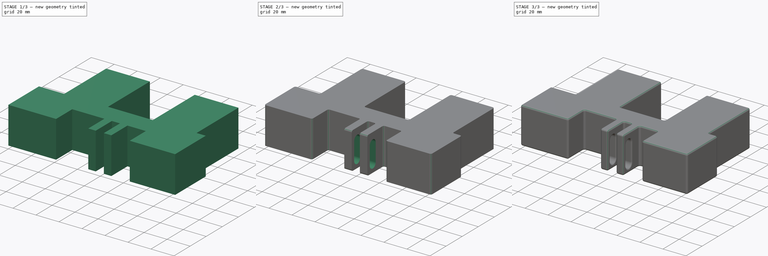
[diagram: build sequence overview — one tinted view per stage of 3, left to right]
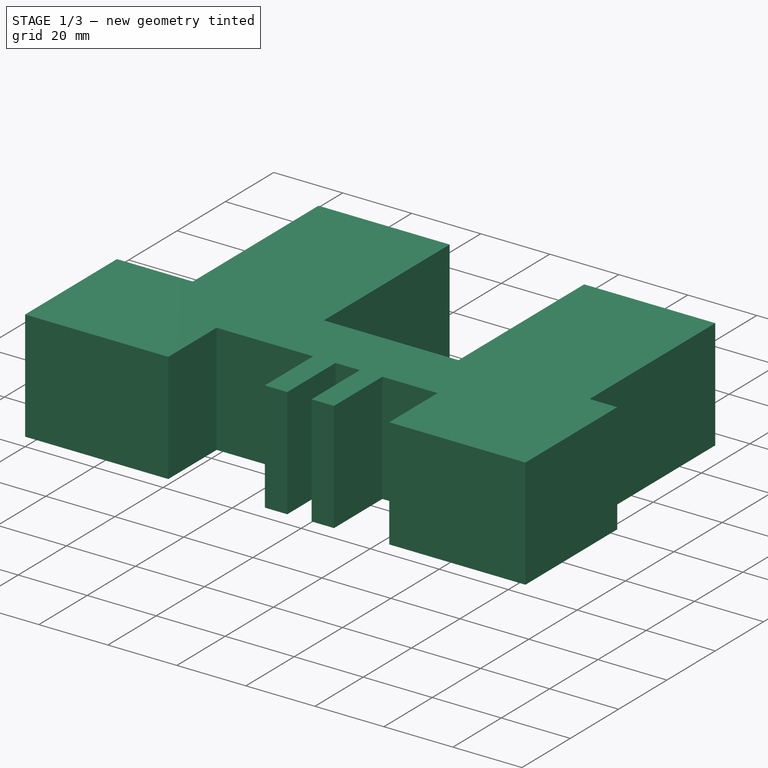
[diagram: stage 1 of 3 — iso view after this stage's code; geometry added in this stage tinted green]
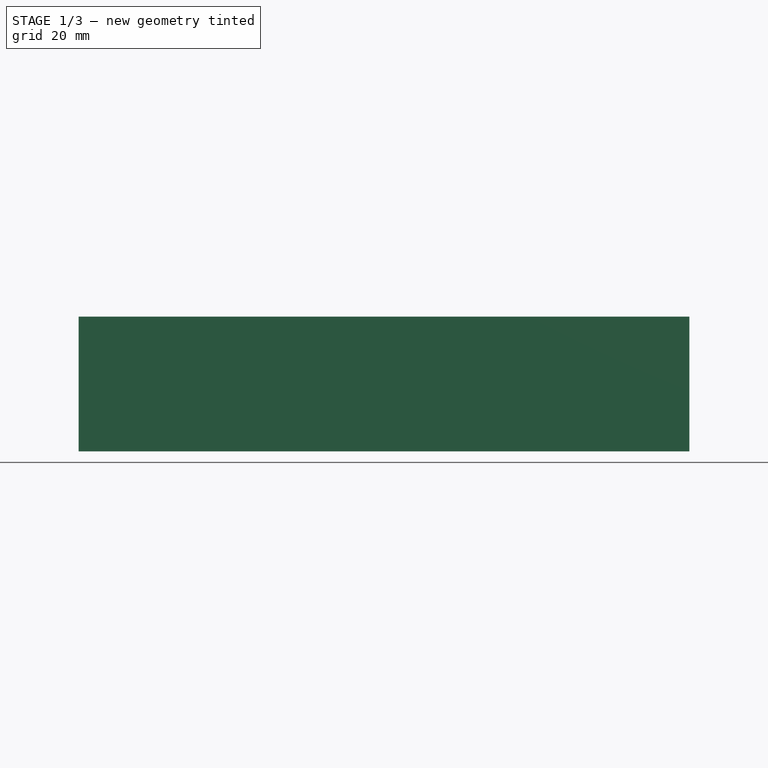
[diagram: stage 1 of 3 — front view after this stage's code; geometry added in this stage tinted green]
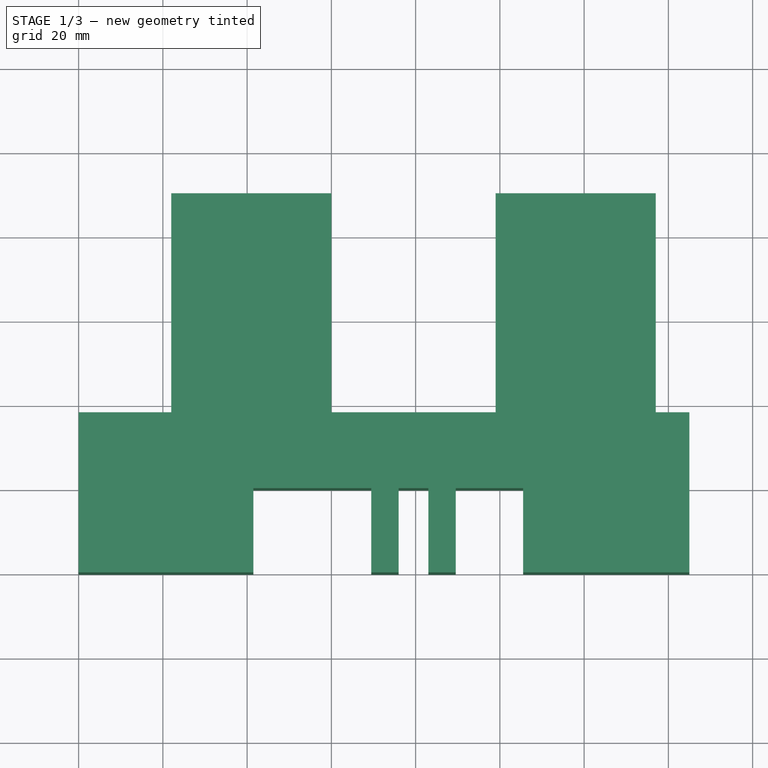
[diagram: stage 1 of 3 — top view after this stage's code; geometry added in this stage tinted green]
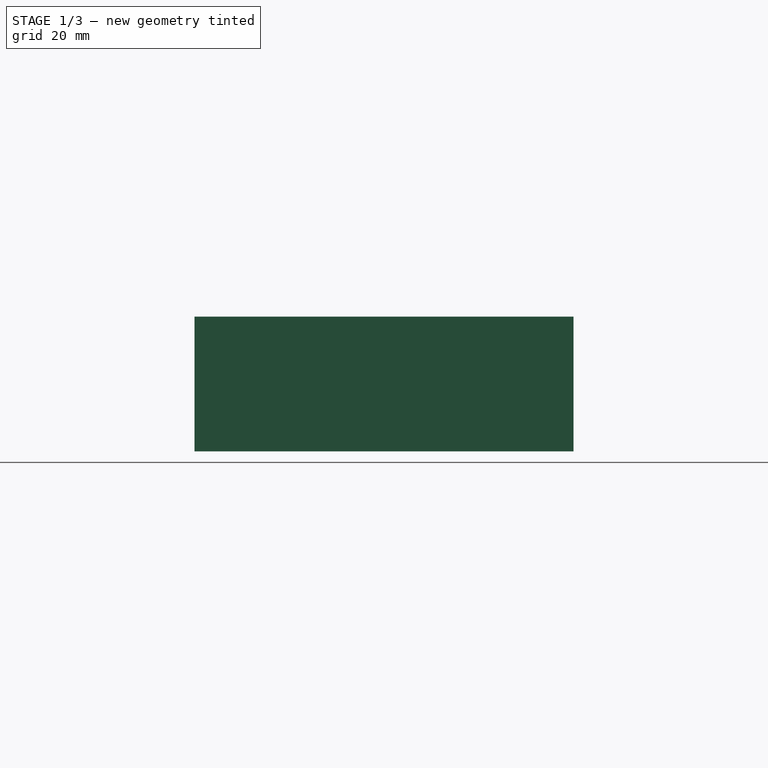
[diagram: stage 1 of 3 — right view after this stage's code; geometry added in this stage tinted green]
FCSTD DOCUMENT  (FreeCAD 1.0RUnknown)
Label: water-valve-support
License: All rights reserved
LicenseURL: https://en.wikipedia.org/wiki/All_rights_reserved
objects: PartDesign::Fillet×4, Sketcher::SketchObject×3, PartDesign::Pocket×2, PartDesign::Pad×1, PartDesign::Body×1
note: 28 computed .brp shape members not serialized (recipe doc carries the construction recipe); baked Part::Feature solids carry a one-line shape summary decoded from their .brp

FEATURE [Sketcher::SketchObject] Sketch
  ArcFitTolerance = 1e-06
  AttachmentSupport = -> [XY_Plane]
  FullyConstrained = true
  MakeInternals = false
  MapMode = 5
  sketch-geometry (12):
    g0: LineSegment StartX=0 StartY=0 StartZ=0 EndX=0 EndY=38 EndZ=0
    g1: LineSegment StartX=22 StartY=38 StartZ=0 EndX=0 EndY=38 EndZ=0
    g2: LineSegment StartX=22 StartY=38 StartZ=0 EndX=22 EndY=90 EndZ=0
    g3: LineSegment StartX=22 StartY=90 StartZ=0 EndX=60 EndY=90 EndZ=0
    g4: LineSegment StartX=60 StartY=90 StartZ=0 EndX=60 EndY=38 EndZ=0
    g5: LineSegment StartX=60 StartY=38 StartZ=0 EndX=99 EndY=38 EndZ=0
    g6: LineSegment StartX=99 StartY=38 StartZ=0 EndX=99 EndY=90 EndZ=0
    g7: LineSegment StartX=99 StartY=90 StartZ=0 EndX=137 EndY=90 EndZ=0
    g8: LineSegment StartX=137 StartY=90 StartZ=0 EndX=137 EndY=38 EndZ=0
    g9: LineSegment StartX=137 StartY=38 StartZ=0 EndX=145 EndY=38 EndZ=0
    g10: LineSegment StartX=145 StartY=38 StartZ=0 EndX=145 EndY=0 EndZ=0
    g11: LineSegment StartX=145 StartY=0 StartZ=0 EndX=0 EndY=0 EndZ=0
  constraints (35):
    c: Coincident(g0,g-1)
    c: PointOnObject(g0,g-2)
    c: Coincident(g1,g0)
    c: Horizontal(g1)
    c: Coincident(g2,g1)
    c: Vertical(g2)
    c: Horizontal(g3)
    c: Vertical(g4)
    c: Horizontal(g5)
    c: Vertical(g6)
    c: Horizontal(g7)
    c: Vertical(g8)
    c: PointOnObject(g10,g-1)
    c: Vertical(g10)
    c: Coincident(g11,g0)
    c: Equal(g3,g7)
    c: Equal(g2,g6)
    c: Coincident(g3,g2)
    c: Coincident(g3,g4)
    c: Coincident(g4,g5)
    c: Coincident(g5,g6)
    c: Coincident(g7,g6)
    c: Coincident(g7,g8)
    c: Coincident(g8,g9)
    c: Coincident(g10,g9)
    c: Horizontal(g9)
    c: Coincident(g10,g11)
    c: Horizontal(g1,g4)
    c: Horizontal(g5,g8)
    c: DistanceX(g11,g11) = 145
    c: Distance(g0,g0) = 38
    c: Distance(g2,g2) = 52
    c: Distance(g3,g3) = 38
    c: DistanceX(g1,g1) = 22
    c: Distance(g9,g9) = 8
FEATURE [PartDesign::Pad] Pad
  Direction = (0,0,1)
  Length = 32
  Length2 = 10
  Profile = -> Sketch
  ReferenceAxis = -> Sketch [N_Axis]
  Refine = true
  Suppressed = false
  Type = 0
FEATURE [Sketcher::SketchObject] Sketch001
  ArcFitTolerance = 1e-06
  AttachmentSupport = -> [Pad]
  ExternalGeometry = -> [Pad]
  FullyConstrained = true
  MakeInternals = false
  MapMode = 5
  Placement = pos=(0,0,0) rot=(1,0,0;1.5708rad)
  sketch-geometry (23):
    g0: LineSegment [constr] StartX=60 StartY=32 StartZ=0 EndX=99 EndY=7.1e-15 EndZ=0
    g1: GeomPoint [constr] X=79.5 Y=16 Z=0
    g2: LineSegment [constr] StartX=69.475 StartY=32 StartZ=0 EndX=69.475 EndY=2.49e-14 EndZ=0
    g3: LineSegment [constr] StartX=69.475 StartY=2.54e-14 StartZ=0 EndX=75.975 EndY=2.54e-14 EndZ=0
    g4: LineSegment [constr] StartX=75.975 StartY=2.54e-14 StartZ=0 EndX=75.975 EndY=32 EndZ=0
    g5: LineSegment [constr] StartX=75.975 StartY=32 StartZ=0 EndX=69.475 EndY=32 EndZ=0
    g6: LineSegment [constr] StartX=83.025 StartY=32 StartZ=0 EndX=83.025 EndY=0 EndZ=0
    g7: LineSegment [constr] StartX=83.025 StartY=0 StartZ=0 EndX=89.525 EndY=0 EndZ=0
    g8: LineSegment [constr] StartX=89.525 StartY=0 StartZ=0 EndX=89.525 EndY=32 EndZ=0
    g9: LineSegment [constr] StartX=89.525 StartY=32 StartZ=0 EndX=83.025 EndY=32 EndZ=0
    g10: LineSegment StartX=75.975 StartY=32 StartZ=0 EndX=75.975 EndY=0 EndZ=0
    g11: LineSegment StartX=75.975 StartY=0 StartZ=0 EndX=83.025 EndY=0 EndZ=0
    g12: LineSegment StartX=83.025 StartY=0 StartZ=0 EndX=83.025 EndY=32 EndZ=0
    g13: LineSegment StartX=83.025 StartY=32 StartZ=0 EndX=75.975 EndY=32 EndZ=0
    g14: LineSegment StartX=41.5 StartY=32 StartZ=0 EndX=41.5 EndY=0 EndZ=0
    g15: LineSegment StartX=41.5 StartY=0 StartZ=0 EndX=69.475 EndY=0 EndZ=0
    g16: LineSegment StartX=69.475 StartY=0 StartZ=0 EndX=69.475 EndY=32 EndZ=0
    g17: LineSegment StartX=69.475 StartY=32 StartZ=0 EndX=41.5 EndY=32 EndZ=0
    g18: LineSegment StartX=89.525 StartY=32 StartZ=0 EndX=89.525 EndY=0 EndZ=0
    g19: LineSegment StartX=105.525 StartY=32 StartZ=0 EndX=89.525 EndY=32 EndZ=0
    g20: GeomPoint [constr] X=49.5 Y=32 Z=0
    g21: LineSegment StartX=89.525 StartY=0 StartZ=0 EndX=105.525 EndY=0 EndZ=0
    g22: LineSegment StartX=105.525 StartY=32 StartZ=0 EndX=105.525 EndY=0 EndZ=0
  constraints (60):
    c: Coincident(g0,g-3)
    c: Coincident(g0,g-4)
    c: Symmetric(g0,g0,g1)
    c: Coincident(g2,g3)
    c: Coincident(g4,g5)
    c: Coincident(g5,g2)
    c: Vertical(g2)
    c: Vertical(g4)
    c: Horizontal(g3)
    c: Horizontal(g5)
    c: PointOnObject(g2,g-5)
    c: Coincident(g6,g7)
    c: Coincident(g7,g8)
    c: Coincident(g8,g9)
    c: Coincident(g9,g6)
    c: Vertical(g6)
    c: Vertical(g8)
    c: Horizontal(g7)
    c: Horizontal(g9)
    c: PointOnObject(g6,g-5)
    c: PointOnObject(g7,g-6)
    c: Coincident(g4,g3)
    c: Symmetric(g6,g3,g1)
    c: Equal(g5,g9)
    c: DistanceX(g3,g6) = 7.05
    c: Coincident(g10,g11)
    c: Coincident(g11,g12)
    c: Coincident(g12,g13)
    c: Coincident(g13,g10)
    c: Vertical(g10)
    c: Vertical(g12)
    c: Horizontal(g11)
    c: Horizontal(g13)
    c: Coincident(g10,g4)
    c: Coincident(g11,g6)
    c: Distance(g5,g5) = 6.5
    c: Coincident(g14,g15)
    c: Coincident(g15,g16)
    c: Coincident(g16,g17)
    c: Coincident(g17,g14)
    c: Vertical(g14)
    c: Vertical(g16)
    c: Horizontal(g15)
    c: Horizontal(g17)
    c: PointOnObject(g15,g-6)
    c: Coincident(g19,g18)
    c: Vertical(g18)
    c: Horizontal(g19)
    c: Coincident(g18,g8)
    c: Coincident(g16,g2)
    c: DistanceX(g20,g1) = 30
    c: Distance(g20,g14) = 8
    c: PointOnObject(g20,g17)
    c: Coincident(g21,g18)
    c: PointOnObject(g21,g-6)
    c: Horizontal(g21)
    c: Coincident(g22,g19)
    c: Coincident(g22,g21)
    c: Vertical(g22)
    c: Distance(g19,g19) = 16
FEATURE [PartDesign::Pocket] Pocket
  BaseFeature = -> Pad
  Direction = (0,1,-2e-16)
  Length = 20
  Length2 = 5
  Profile = -> Sketch001
  ReferenceAxis = -> Sketch001 [N_Axis]
  Refine = true
  Suppressed = false
  Type = 0
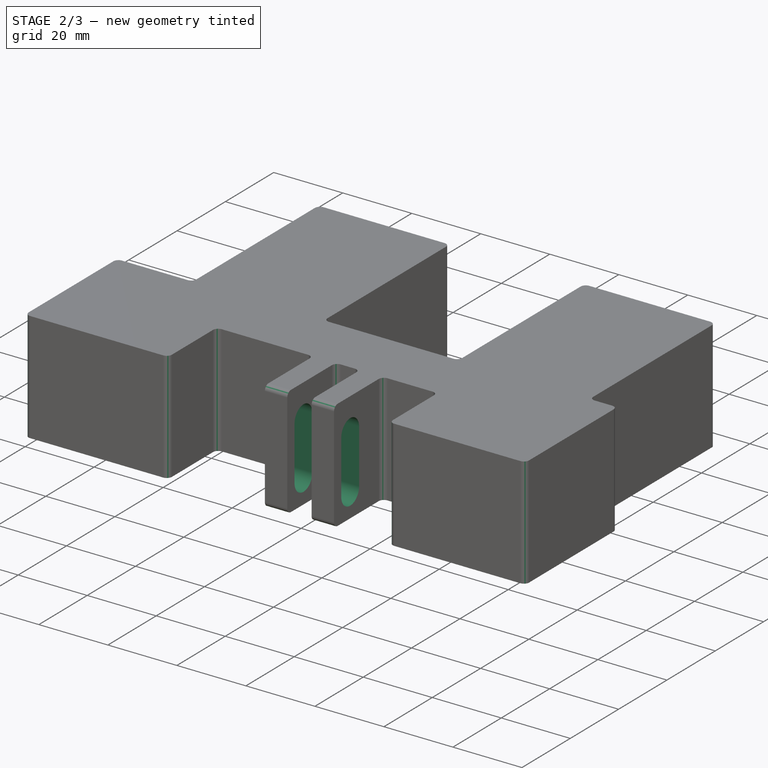
[diagram: stage 2 of 3 — iso view after this stage's code; geometry added in this stage tinted green]
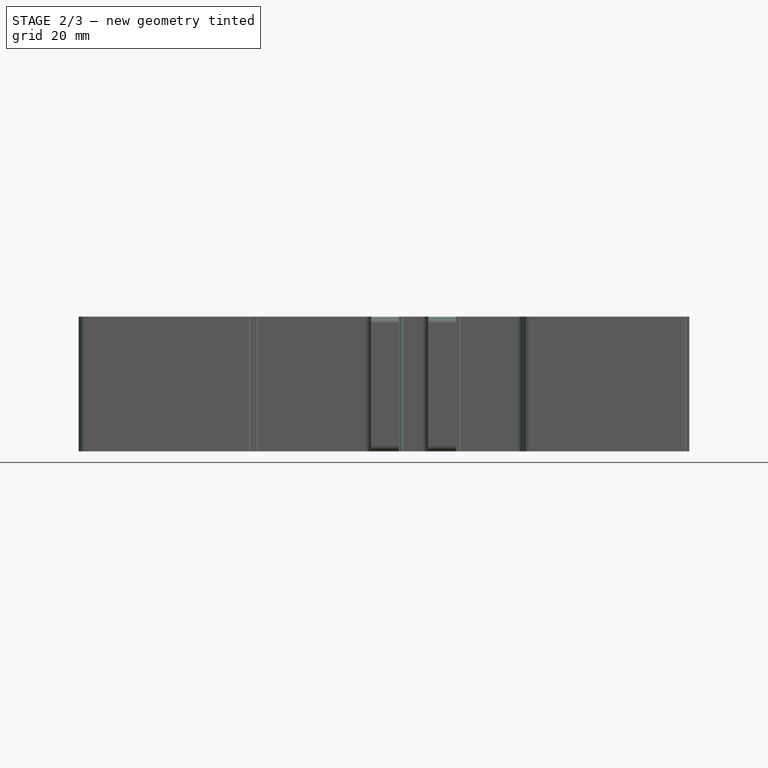
[diagram: stage 2 of 3 — front view after this stage's code; geometry added in this stage tinted green]
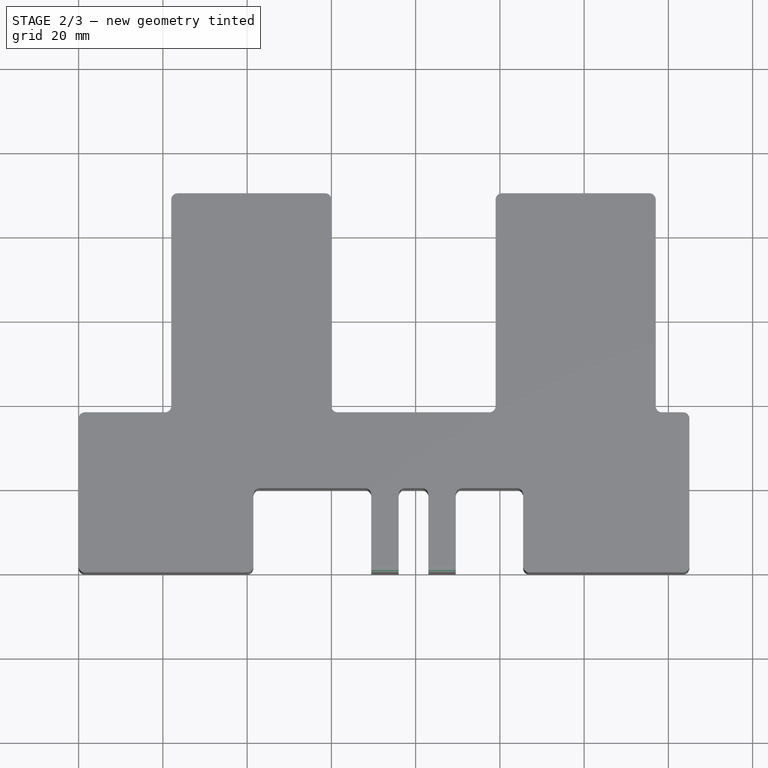
[diagram: stage 2 of 3 — top view after this stage's code; geometry added in this stage tinted green]
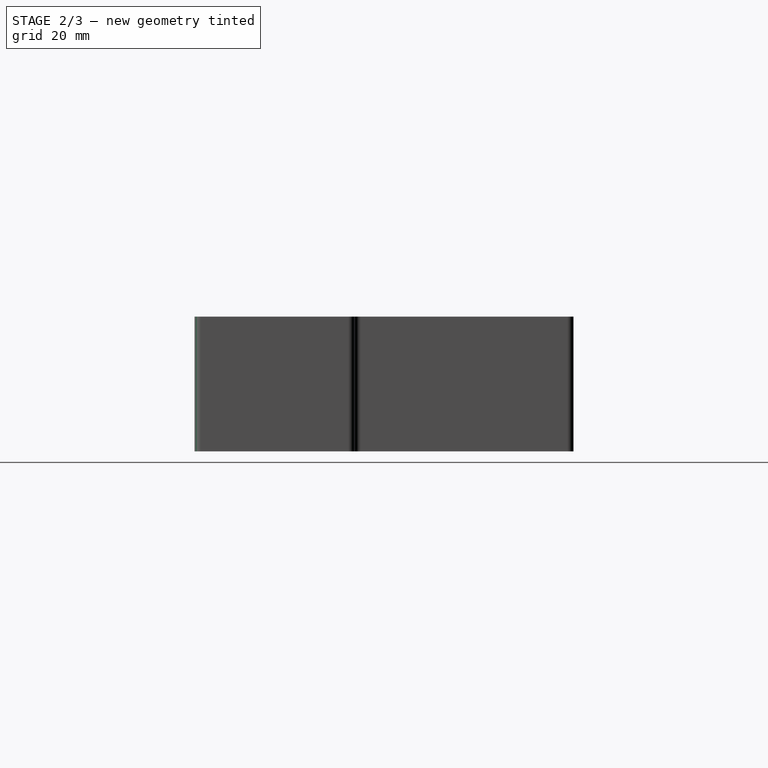
[diagram: stage 2 of 3 — right view after this stage's code; geometry added in this stage tinted green]
FEATURE [Sketcher::SketchObject] Sketch002
  ArcFitTolerance = 1e-06
  AttachmentSupport = -> [Pocket]
  ExternalGeometry = -> [Pocket]
  FullyConstrained = true
  MakeInternals = false
  MapMode = 5
  Placement = pos=(69.475,0,0) rot=(0.57735,-0.57735,-0.57735;2.0944rad)
  sketch-geometry (5):
    g0: LineSegment [constr] StartX=-6.7 StartY=32 StartZ=0 EndX=-6.7 EndY=0 EndZ=0
    g1: ArcOfCircle CenterX=-6.7 CenterY=22.55 CenterZ=0 NormalX=0 NormalY=0 NormalZ=1 AngleXU=0 Radius=3.7 StartAngle=4e-16 EndAngle=3.14159
    g2: ArcOfCircle CenterX=-6.7 CenterY=7.02 CenterZ=0 NormalX=0 NormalY=0 NormalZ=1 AngleXU=0 Radius=3.7 StartAngle=3.14159 EndAngle=6.28319
    g3: LineSegment StartX=-3 StartY=22.55 StartZ=0 EndX=-3 EndY=7.02 EndZ=0
    g4: LineSegment StartX=-10.4 StartY=22.55 StartZ=0 EndX=-10.4 EndY=7.02 EndZ=0
  constraints (14):
    c: PointOnObject(g0,g-3)
    c: PointOnObject(g0,g-5)
    c: Vertical(g0)
    c: Distance(g-4,g0) = 6.7
    c: Tangent(g1,g3) = 1.5708
    c: Tangent(g1,g4) = -1.5708
    c: Tangent(g2,g3) = 1.5708
    c: Tangent(g2,g4) = -1.5708
    c: Equal(g1,g2)
    c: Vertical(g4)
    c: Radius(g1) = 3.7
    c: PointOnObject(g1,g0)
    c: DistanceY(g2,g1) = 15.53
    c: Distance(g1,g-3) = 9.45
FEATURE [PartDesign::Pocket] Pocket001
  BaseFeature = -> Pocket
  Direction = (1,0,0)
  Length = 0
  Length2 = 5
  Profile = -> Sketch002
  ReferenceAxis = -> Sketch002 [N_Axis]
  Refine = true
  Suppressed = false
  Type = 3
  UpToFace = -> Pocket [Face19]
FEATURE [PartDesign::Fillet] Fillet
  Base = -> Pocket001 [Edge7,Edge53,Edge84,Edge77,Edge72,Edge65,Edge64,Edge63,Edge62,Edge61,Edge60,Edge59,Edge58,Edge57,Edge56,Edge55,Edge54,Edge8,Edge2,Edge1]
  BaseFeature = -> Pocket001
  Radius = 1.5
  Refine = true
  SupportTransform = false
  Suppressed = false
  UseAllEdges = false
FEATURE [PartDesign::Fillet] Fillet001
  Base = -> Fillet [Edge78,Edge33,Edge21,Edge66]
  BaseFeature = -> Fillet
  Radius = 1.5
  Refine = true
  SupportTransform = false
  Suppressed = false
  UseAllEdges = false
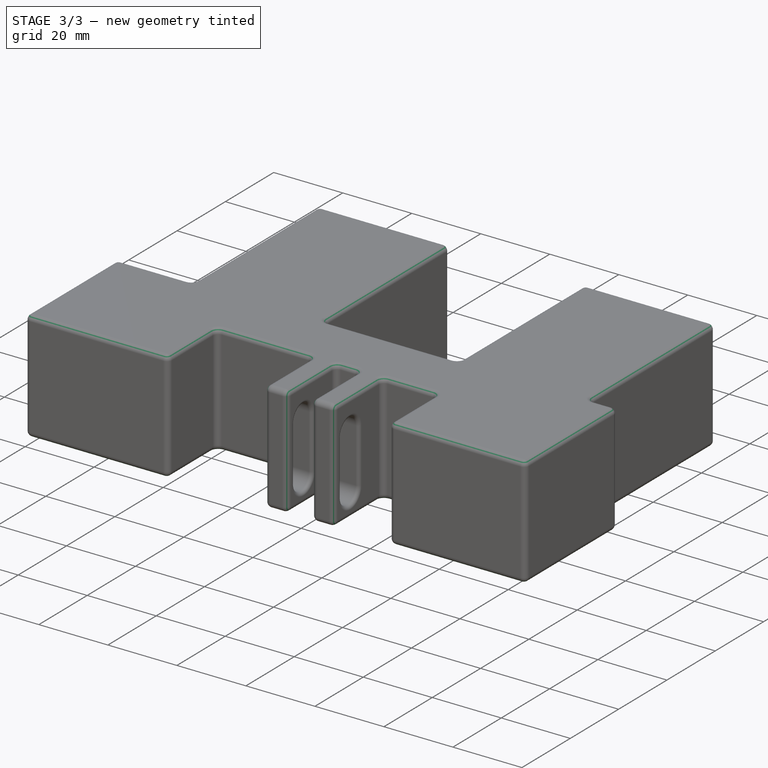
[diagram: stage 3 of 3 — iso view after this stage's code; geometry added in this stage tinted green]
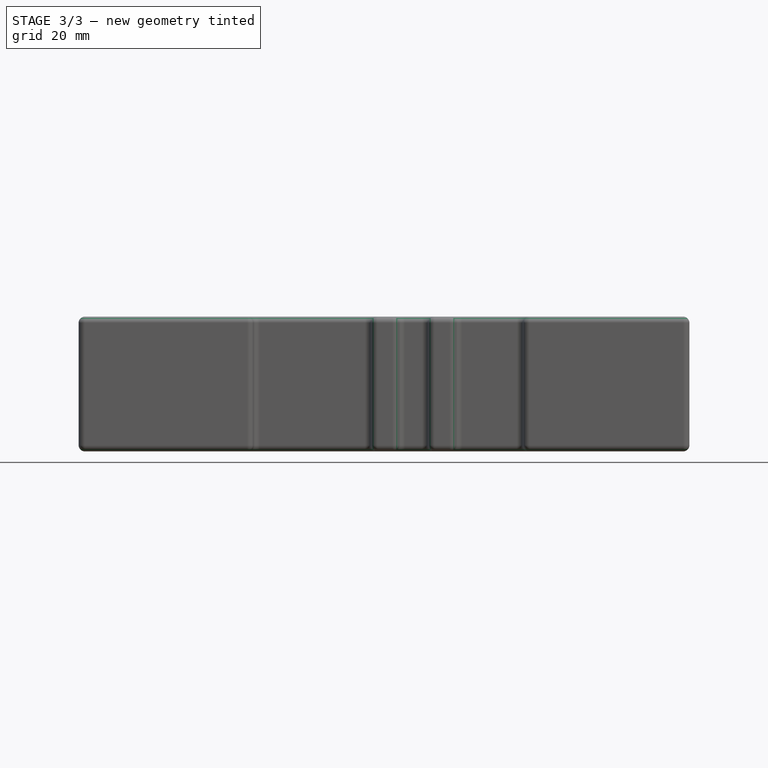
[diagram: stage 3 of 3 — front view after this stage's code; geometry added in this stage tinted green]
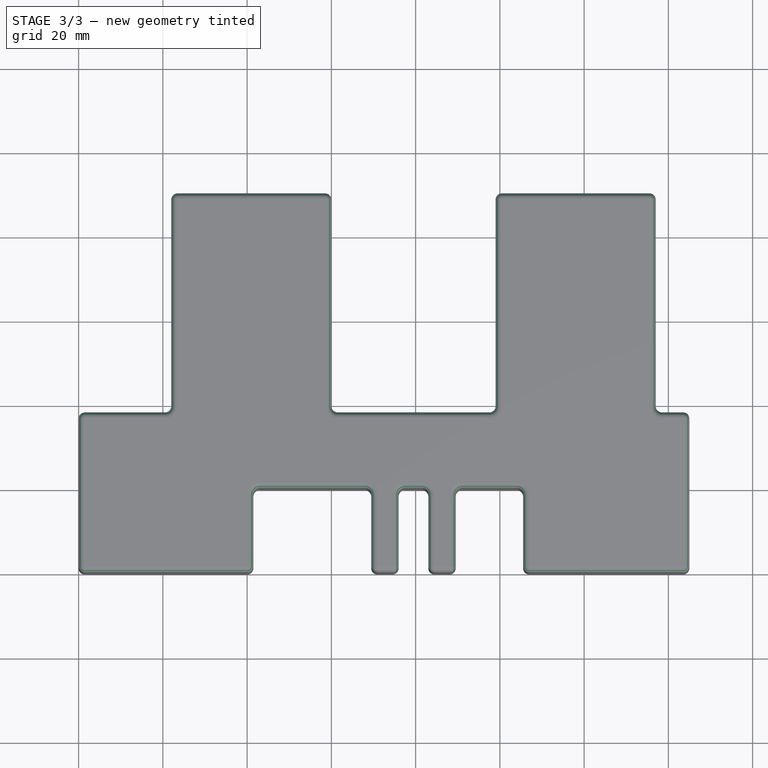
[diagram: stage 3 of 3 — top view after this stage's code; geometry added in this stage tinted green]
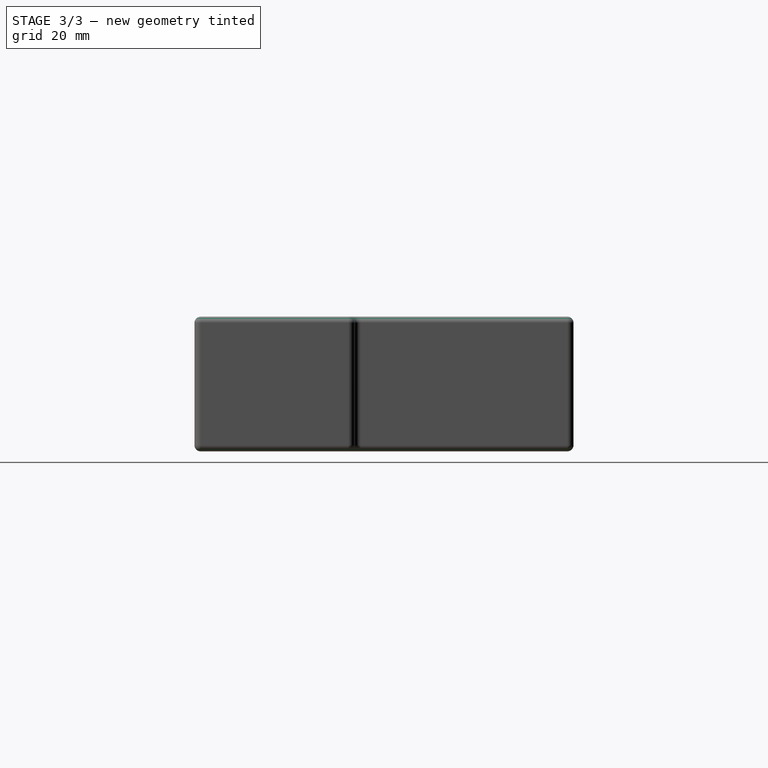
[diagram: stage 3 of 3 — right view after this stage's code; geometry added in this stage tinted green]
FEATURE [PartDesign::Fillet] Fillet002
  Base = -> Fillet001 [Edge119,Edge13,Edge58]
  BaseFeature = -> Fillet001
  Radius = 1.5
  Refine = true
  SupportTransform = false
  Suppressed = false
  UseAllEdges = false
FEATURE [PartDesign::Fillet] Fillet003
  Base = -> Fillet002 [Edge136,Edge128,Edge156,Edge176]
  BaseFeature = -> Fillet002
  Radius = 1
  Refine = true
  SupportTransform = false
  Suppressed = false
  UseAllEdges = false
FEATURE [PartDesign::Body] Body
  AllowCompound = false
  Group = -> [Sketch,Pad,Sketch001,Pocket,Sketch002,Pocket001,Fillet,Fillet001,Fillet002,Fillet003]
  Origin = -> Origin
  Tip = -> Fillet003
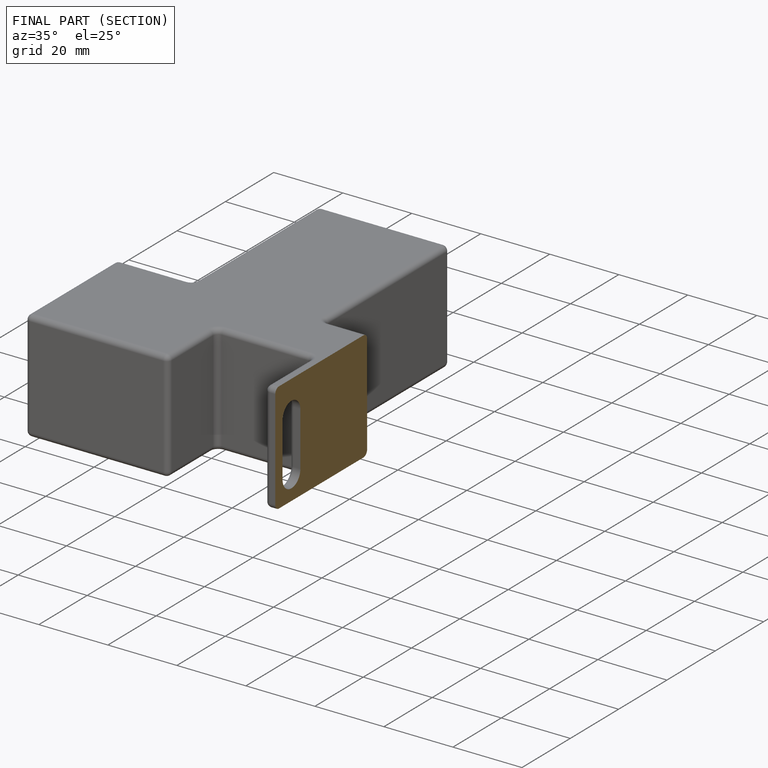
[diagram: finished part — half-section view (interior)]
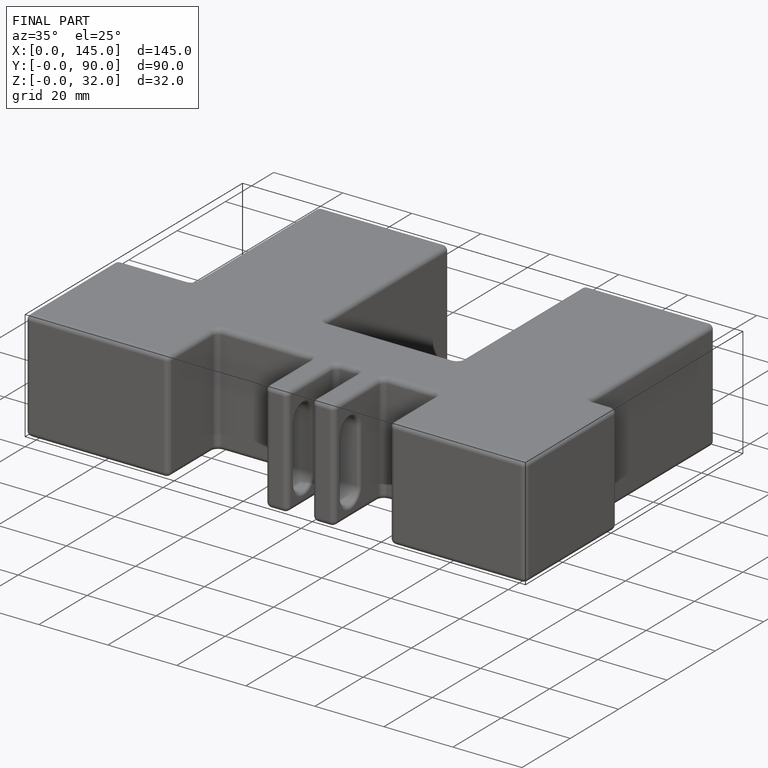
[diagram: finished part — iso view with bounding-box wireframe]
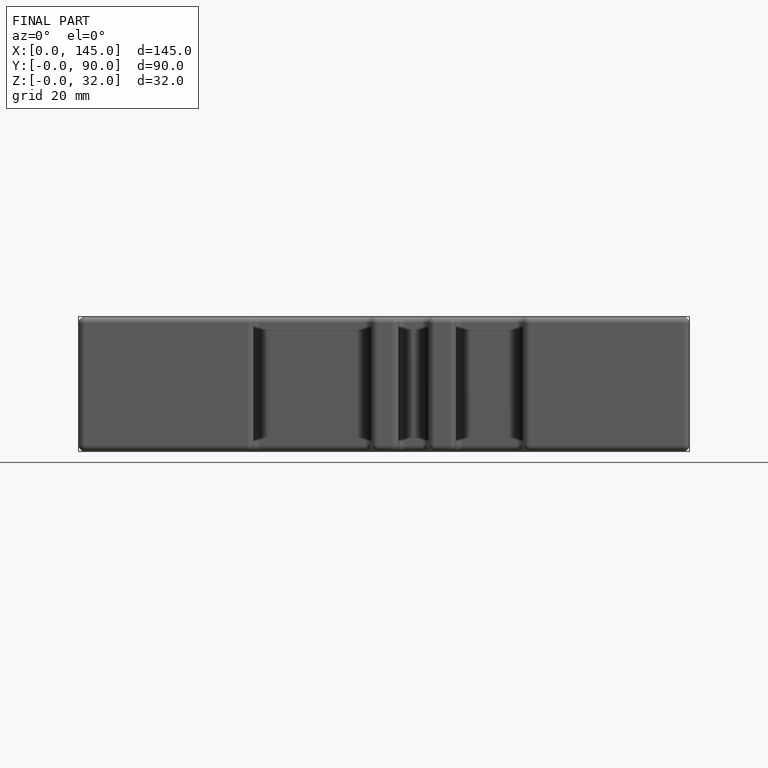
[diagram: finished part — front view with bounding-box wireframe]
